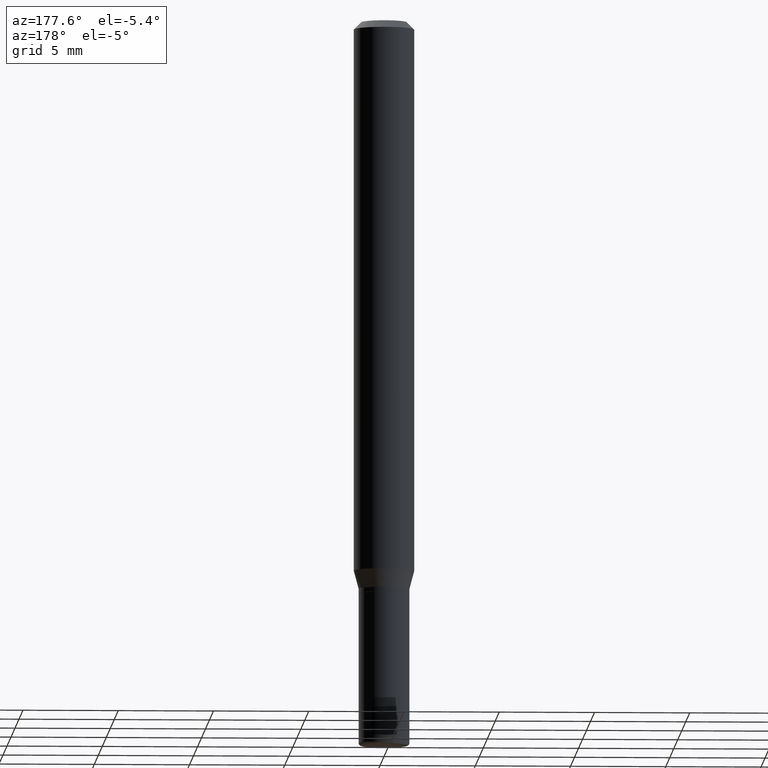
[diagram: clean part render]
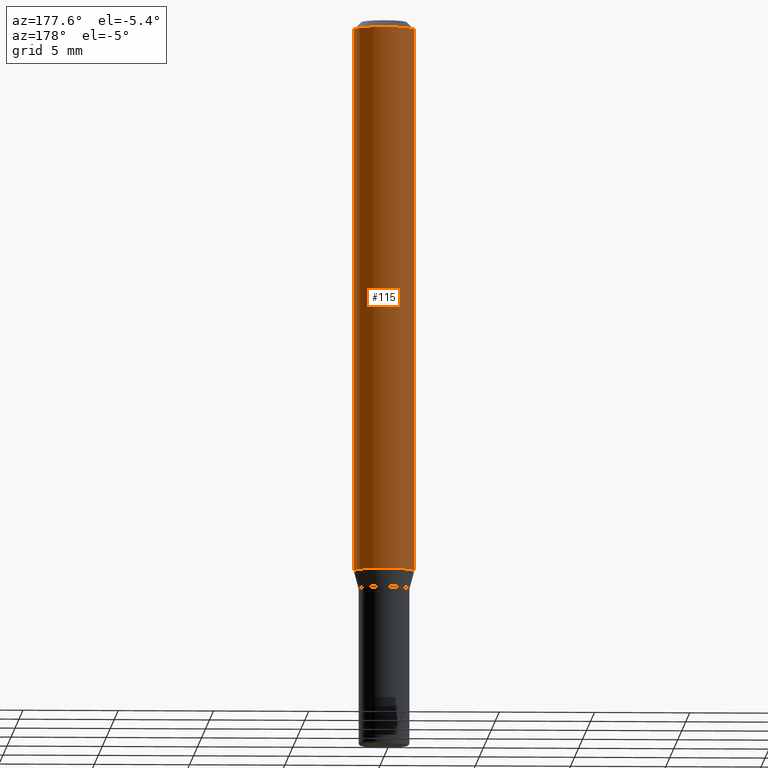
[diagram: same view with one face highlighted and labeled with its STEP entity id]
A machine part, auxiliary view. The second image highlights one B-rep face of the part: STEP entity #115.
In plain terms, the highlighted cylindrical surface (edge-blend (fillet) strip) has radius 1.5875 mm, axis along (-0, 0, 1).
Its self-contained STEP definition (entity closure, byte-faithful):
#2 = VECTOR ( 'NONE', #123, 39.37007874015748143 ) ;
#5 = VERTEX_POINT ( 'NONE', #177 ) ;
#17 = CARTESIAN_POINT ( 'NONE',  ( -0.06250000000000000000, 4.440892098500626162E-16, -3.074334431409316114E-30 ) ) ;
#20 = LINE ( 'NONE', #17, #2 ) ;
#49 = DIRECTION ( 'NONE',  ( 1.000000000000000000, -6.982962677686266711E-15, 4.876176775795935793E-29 ) ) ;
#55 = DIRECTION ( 'NONE',  ( -2.445468806185136597E-29, 3.491481338843145583E-15, 1.000000000000000000 ) ) ;
#72 = VERTEX_POINT ( 'NONE', #174 ) ;
#76 = DIRECTION ( 'NONE',  ( -2.445468806185136877E-29, 3.491481338843145188E-15, 1.000000000000000000 ) ) ;
#115 = ADVANCED_FACE ( 'NONE', ( #250 ), #370, .T. ) ;
#120 = AXIS2_PLACEMENT_3D ( 'NONE', #376, #55, #165 ) ;
#123 = DIRECTION ( 'NONE',  ( -2.445468806185136877E-29, 3.491481338843145188E-15, 1.000000000000000000 ) ) ;
#124 = DIRECTION ( 'NONE',  ( -2.445468806185136597E-29, 3.491481338843145583E-15, 1.000000000000000000 ) ) ;
#165 = DIRECTION ( 'NONE',  ( 1.000000000000000000, -6.982962677686270655E-15, 0.000000000000000000 ) ) ;
#172 = CARTESIAN_POINT ( 'NONE',  ( 3.668203209277632395E-31, -5.237222008264614861E-17, -0.01499999999999970281 ) ) ;
#174 = CARTESIAN_POINT ( 'NONE',  ( 0.06250000000000000000, -4.408621882993678121E-15, -1.137679491924311836 ) ) ;
#176 = ORIENTED_EDGE ( 'NONE', *, *, #344, .T. ) ;
#177 = CARTESIAN_POINT ( 'NONE',  ( -0.06250000000000000000, -1.568190258010403558E-15, -0.01499999999999970281 ) ) ;
#187 = AXIS2_PLACEMENT_3D ( 'NONE', #285, #373, #49 ) ;
#205 = CARTESIAN_POINT ( 'NONE',  ( 0.06250000000000000000, -4.888073874380378612E-16, -0.01499999999999970281 ) ) ;
#207 = CIRCLE ( 'NONE', #120, 0.06250000000000000000 ) ;
#223 = EDGE_CURVE ( 'NONE', #72, #328, #363, .T. ) ;
#235 = VECTOR ( 'NONE', #76, 39.37007874015748143 ) ;
#241 = CIRCLE ( 'NONE', #431, 0.06250000000000000000 ) ;
#250 = FACE_OUTER_BOUND ( 'NONE', #277, .T. ) ;
#253 = DIRECTION ( 'NONE',  ( 1.000000000000000000, -6.982962677686266711E-15, 0.000000000000000000 ) ) ;
#277 = EDGE_LOOP ( 'NONE', ( #497, #176, #301, #446 ) ) ;
#285 = CARTESIAN_POINT ( 'NONE',  ( 0.000000000000000000, 0.000000000000000000, 0.000000000000000000 ) ) ;
#294 = VERTEX_POINT ( 'NONE', #346 ) ;
#301 = ORIENTED_EDGE ( 'NONE', *, *, #362, .F. ) ;
#319 = EDGE_CURVE ( 'NONE', #72, #294, #207, .T. ) ;
#328 = VERTEX_POINT ( 'NONE', #205 ) ;
#344 = EDGE_CURVE ( 'NONE', #294, #5, #20, .T. ) ;
#346 = CARTESIAN_POINT ( 'NONE',  ( -0.06250000000000000000, -3.528097505788223835E-15, -1.137679491924311836 ) ) ;
#362 = EDGE_CURVE ( 'NONE', #328, #5, #241, .T. ) ;
#363 = LINE ( 'NONE', #445, #235 ) ;
#370 = CYLINDRICAL_SURFACE ( 'NONE', #187, 0.06250000000000000000 ) ;
#373 = DIRECTION ( 'NONE',  ( -2.445468806185136597E-29, 3.491481338843145583E-15, 1.000000000000000000 ) ) ;
#376 = CARTESIAN_POINT ( 'NONE',  ( 2.782159708937459794E-29, -3.972186715638285663E-15, -1.137679491924311836 ) ) ;
#431 = AXIS2_PLACEMENT_3D ( 'NONE', #172, #124, #253 ) ;
#445 = CARTESIAN_POINT ( 'NONE',  ( 0.06250000000000000000, -4.364351673553916694E-16, 3.047610484872459871E-30 ) ) ;
#446 = ORIENTED_EDGE ( 'NONE', *, *, #223, .F. ) ;
#497 = ORIENTED_EDGE ( 'NONE', *, *, #319, .T. ) ;